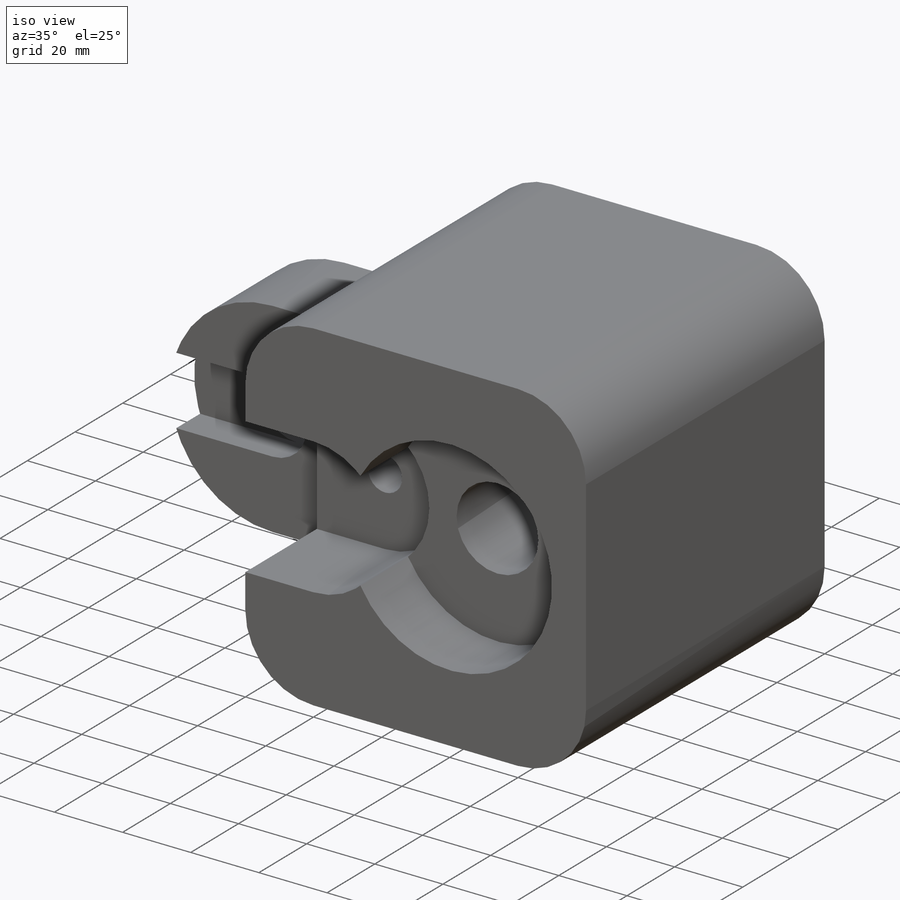
[diagram: iso view]
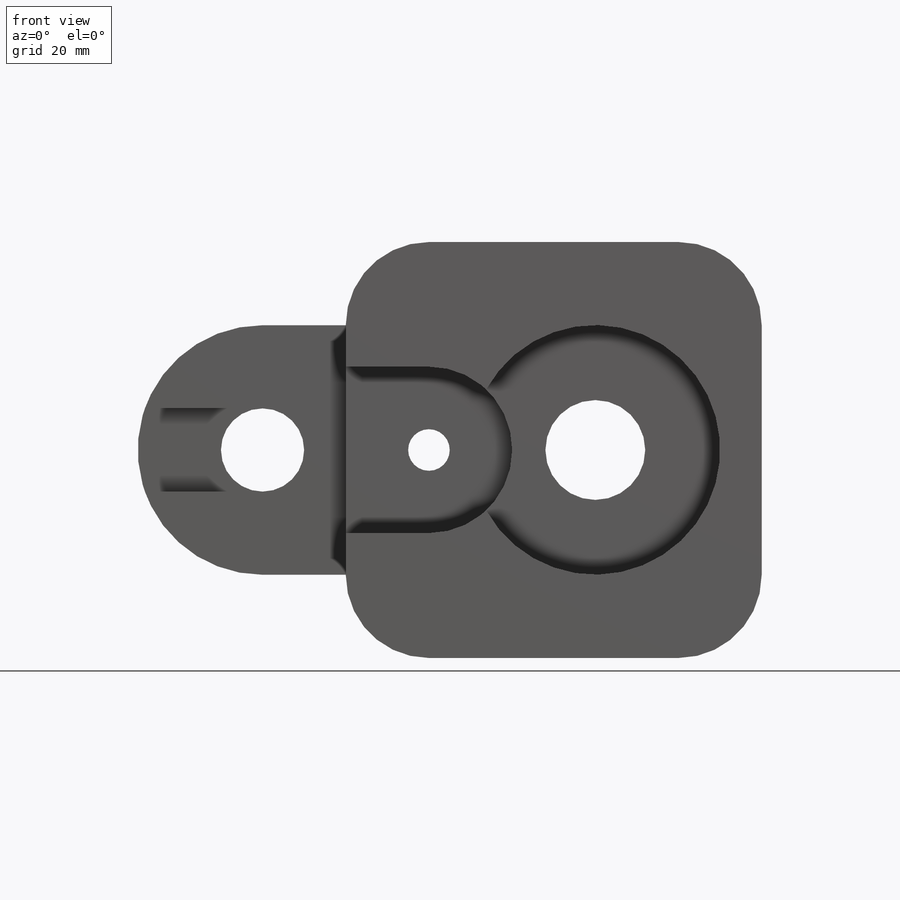
[diagram: front view]
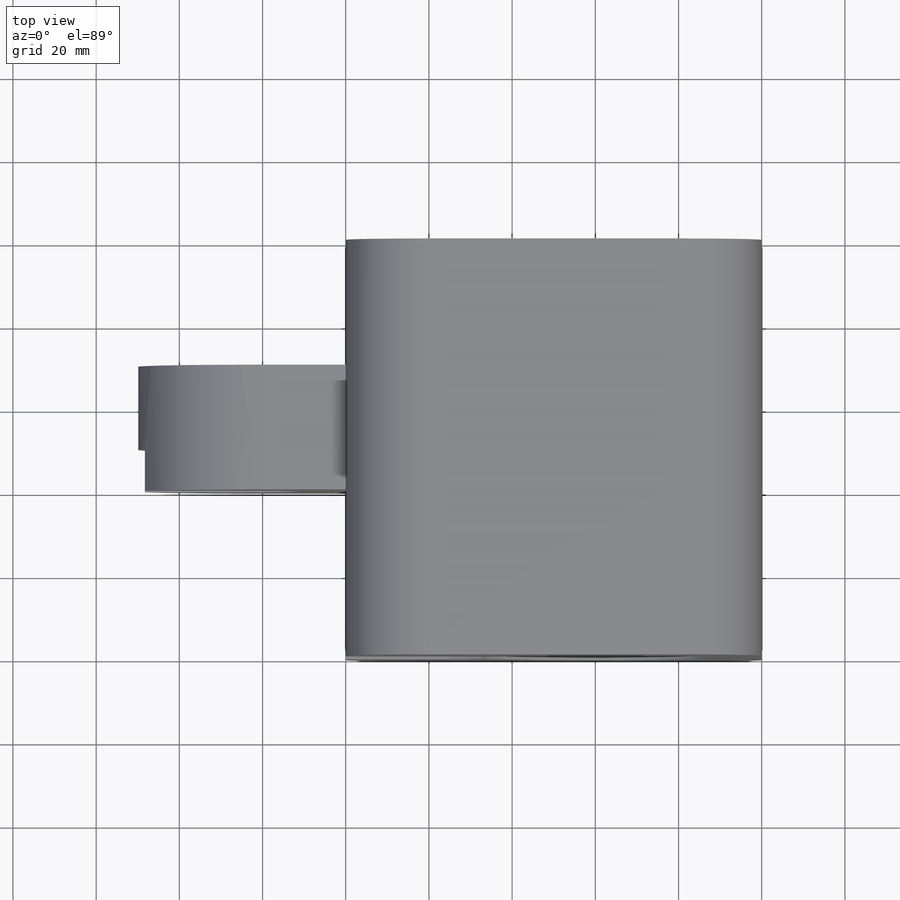
[diagram: top view]
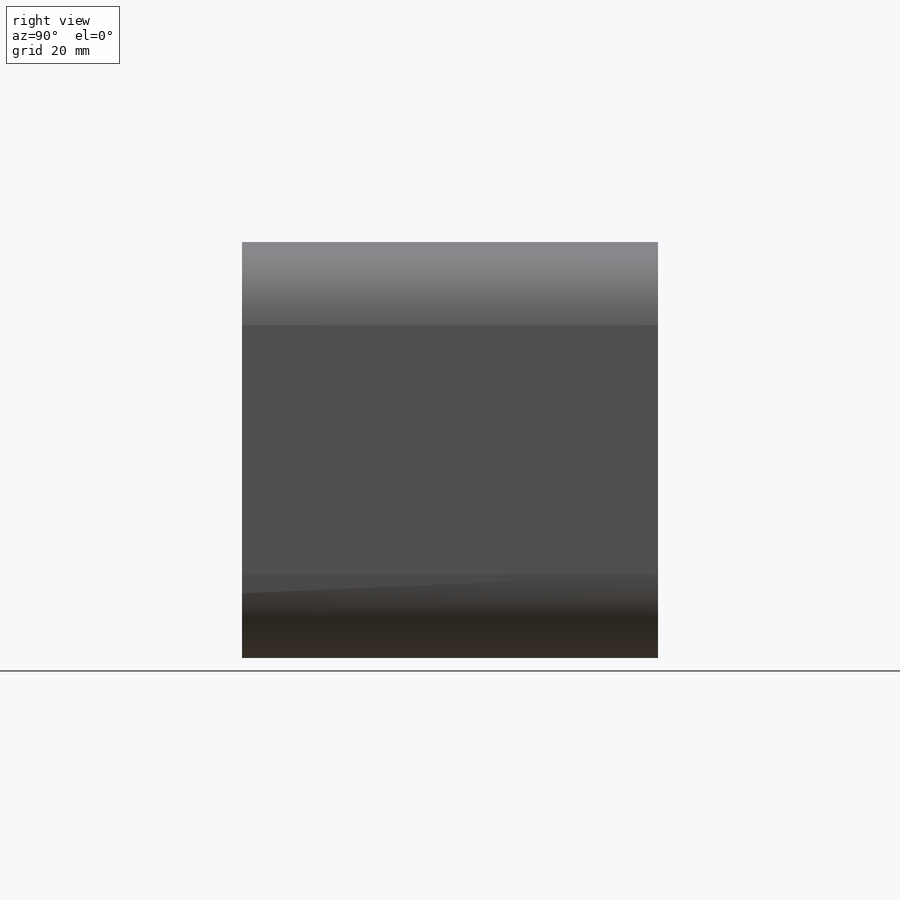
[diagram: right view]
SOLIDWORKS PART (.sldprt)
format: sldprt  version: not decoded by parser v0  size: 360,448 bytes
history: native  units: mm
features: sketch x14, cut_extrude x9, extrude x5, plane x3, material x1 (+13 scaffold rows collapsed)
feature tree (45):
  scaffold x13  (default folders/planes/origin — collapsed)
  material  "Material <not specified>"
  sketch  "Sketch1"  dims[D1=100.0mm D2=100.0mm]
  extrude  "Boss-Extrude1"  Depth=100mm
  sketch  "Sketch2"  dims[D1=20.0mm D6=20.0mm D7=20.0mm D8=20.0mm D18=20.0mm D2=0.0mm D3=20.0mm D4=20.0mm D5=20.0mm D9=20.0mm D10=20.0mm D11=20.0mm D12=20.0mm D13=20.0mm D14=20.0mm D15=0.0mm D16=20.0mm D17=20.0mm]
  cut_extrude  "Cut-Extrude1"  Depth=100mm
  sketch  "Sketch3"  dims[D1=24.0mm D2=40.0mm D3=50.0mm]
  cut_extrude  "Cut-Extrude2"  Depth=80mm
  plane  "Plane1"  Offset=20mm
  sketch  "Sketch5"  dims[D1=10.0mm D2=20.0mm D3=50.0mm]
  cut_extrude  "Cut-Extrude3"  Depth=50mm
  plane  "Plane2"  Offset=30mm
  sketch  "Sketch7"  dims[D5=30.0mm D1=20.0mm D2=20.0mm D3=0.0mm D4=0.0mm]
  extrude  "Boss-Extrude2"  Depth=30mm
  sketch  "Sketch8"  dims[D1=20.0mm]
  cut_extrude  "Cut-Extrude4"  Depth=30mm
  sketch  "Sketch9"
  cut_extrude  "Cut-Extrude5"  Depth=10mm
  plane  "Plane3"  Offset=30mm
  sketch  "Sketch10"  dims[D1=60.0mm]
  cut_extrude  "Cut-Extrude6"  Depth=96mm
  sketch  "Sketch11"  dims[D1=20.0mm D2=20.0mm]
  cut_extrude  "Cut-Extrude7"  Depth=30mm
  sketch  "Sketch14"  dims[D1=15.0mm]
  extrude  "Boss-Extrude5"  Depth=10mm
  sketch  "Sketch15"  dims[D1=24.0mm D2=60.0mm]
  extrude  "Boss-Extrude6"  Depth=40mm
  sketch  "Sketch16"  dims[D1=24.0mm]
  extrude  "Boss-Extrude7"  Depth=10mm
  sketch  "Sketch17"  dims[D1=15.0mm]
  cut_extrude  "Cut-Extrude8"  Depth=10mm
  sketch  "Sketch18"  dims[D1=20.0mm]
  cut_extrude  "Cut-Extrude9"  Depth=20mm
decode coverage: 27 of 28 modeling features carry decoded parameters
note: suppression state not decoded; provenance and decode notes live in map.json
